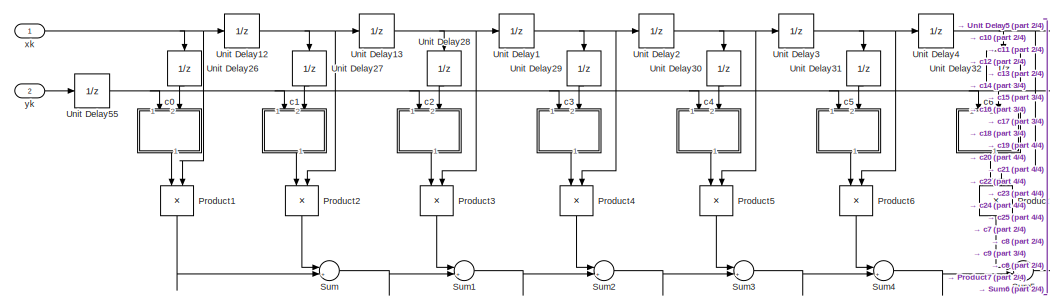
[diagram: root canvas - part 1/4, left side, full height]
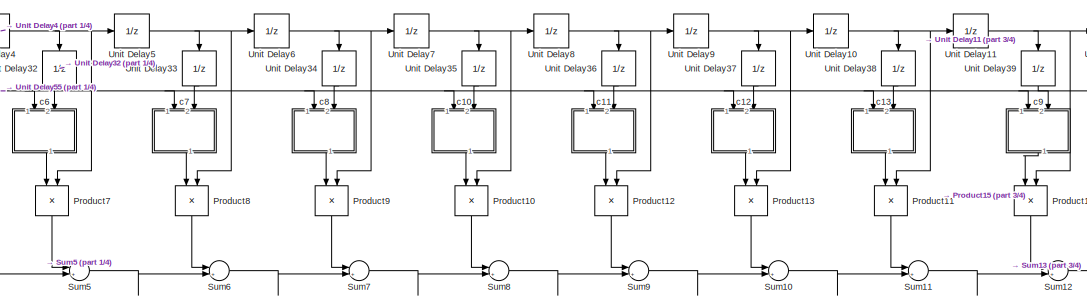
[diagram: root canvas - part 2/4, center side, full height]
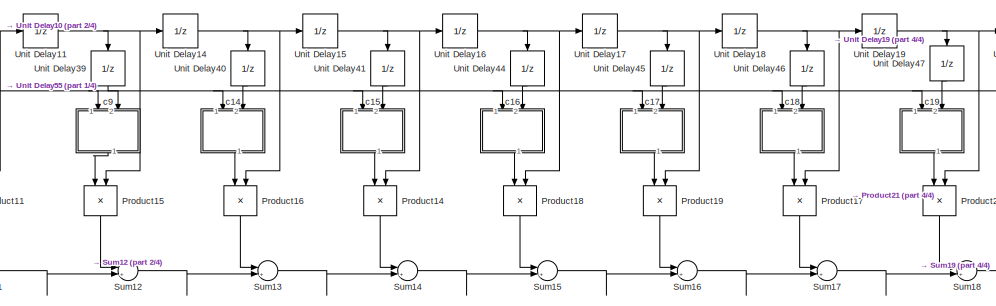
[diagram: root canvas - part 3/4, center side, full height]
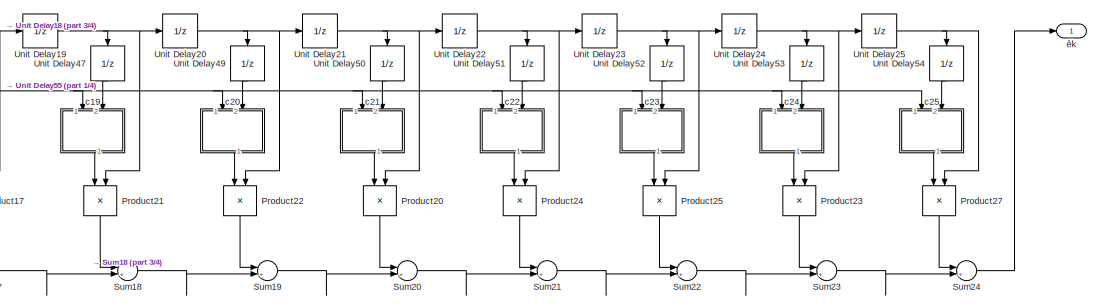
[diagram: root canvas - part 4/4, right side, full height]
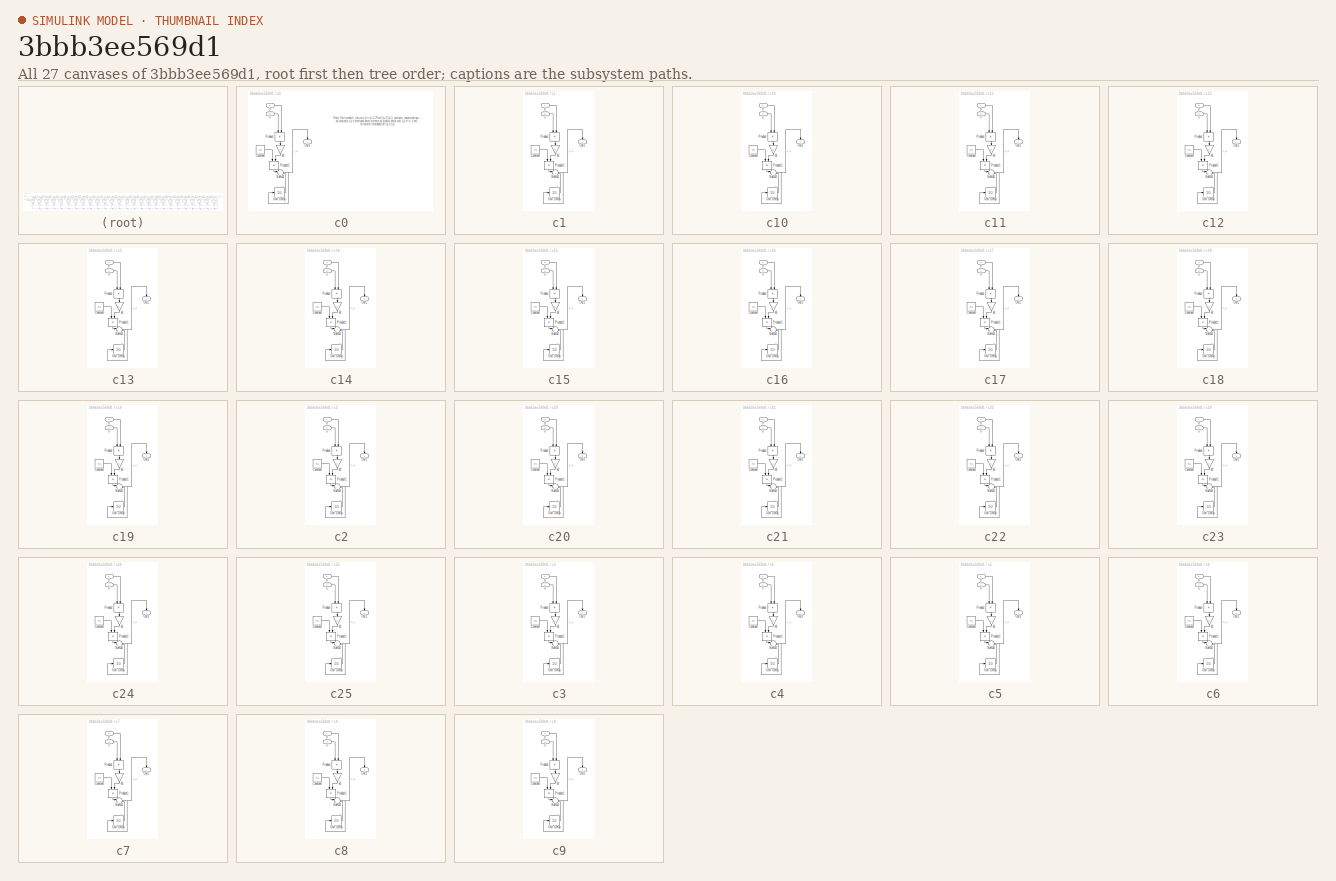
[diagram: thumbnail index - all 27 canvases of the model, root first then tree order]
MODEL slx_3bbb3ee569d1
KIND model
BLOCK [Product] Product1
  InputSameDT = off
  OutDataTypeStr = Inherit: Inherit via internal rule
  Ports = [2, 1]
  RndMeth = Floor
  SaturateOnIntegerOverflow = off
BLOCK [Product] Product10
  InputSameDT = off
  OutDataTypeStr = Inherit: Inherit via internal rule
  Ports = [2, 1]
  RndMeth = Floor
  SaturateOnIntegerOverflow = off
BLOCK [Product] Product11
  InputSameDT = off
  OutDataTypeStr = Inherit: Inherit via internal rule
  Ports = [2, 1]
  RndMeth = Floor
  SaturateOnIntegerOverflow = off
BLOCK [Product] Product12
  InputSameDT = off
  OutDataTypeStr = Inherit: Inherit via internal rule
  Ports = [2, 1]
  RndMeth = Floor
  SaturateOnIntegerOverflow = off
BLOCK [Product] Product13
  InputSameDT = off
  OutDataTypeStr = Inherit: Inherit via internal rule
  Ports = [2, 1]
  RndMeth = Floor
  SaturateOnIntegerOverflow = off
BLOCK [Product] Product14
  InputSameDT = off
  OutDataTypeStr = Inherit: Inherit via internal rule
  Ports = [2, 1]
  RndMeth = Floor
  SaturateOnIntegerOverflow = off
BLOCK [Product] Product15
  InputSameDT = off
  OutDataTypeStr = Inherit: Inherit via internal rule
  Ports = [2, 1]
  RndMeth = Floor
  SaturateOnIntegerOverflow = off
BLOCK [Product] Product16
  InputSameDT = off
  OutDataTypeStr = Inherit: Inherit via internal rule
  Ports = [2, 1]
  RndMeth = Floor
  SaturateOnIntegerOverflow = off
BLOCK [Product] Product17
  InputSameDT = off
  OutDataTypeStr = Inherit: Inherit via internal rule
  Ports = [2, 1]
  RndMeth = Floor
  SaturateOnIntegerOverflow = off
BLOCK [Product] Product18
  InputSameDT = off
  OutDataTypeStr = Inherit: Inherit via internal rule
  Ports = [2, 1]
  RndMeth = Floor
  SaturateOnIntegerOverflow = off
BLOCK [Product] Product19
  InputSameDT = off
  OutDataTypeStr = Inherit: Inherit via internal rule
  Ports = [2, 1]
  RndMeth = Floor
  SaturateOnIntegerOverflow = off
BLOCK [Product] Product2
  InputSameDT = off
  OutDataTypeStr = Inherit: Inherit via internal rule
  Ports = [2, 1]
  RndMeth = Floor
  SaturateOnIntegerOverflow = off
BLOCK [Product] Product20
  InputSameDT = off
  OutDataTypeStr = Inherit: Inherit via internal rule
  Ports = [2, 1]
  RndMeth = Floor
  SaturateOnIntegerOverflow = off
BLOCK [Product] Product21
  InputSameDT = off
  OutDataTypeStr = Inherit: Inherit via internal rule
  Ports = [2, 1]
  RndMeth = Floor
  SaturateOnIntegerOverflow = off
BLOCK [Product] Product22
  InputSameDT = off
  OutDataTypeStr = Inherit: Inherit via internal rule
  Ports = [2, 1]
  RndMeth = Floor
  SaturateOnIntegerOverflow = off
BLOCK [Product] Product23
  InputSameDT = off
  OutDataTypeStr = Inherit: Inherit via internal rule
  Ports = [2, 1]
  RndMeth = Floor
  SaturateOnIntegerOverflow = off
BLOCK [Product] Product24
  InputSameDT = off
  OutDataTypeStr = Inherit: Inherit via internal rule
  Ports = [2, 1]
  RndMeth = Floor
  SaturateOnIntegerOverflow = off
BLOCK [Product] Product25
  InputSameDT = off
  OutDataTypeStr = Inherit: Inherit via internal rule
  Ports = [2, 1]
  RndMeth = Floor
  SaturateOnIntegerOverflow = off
BLOCK [Product] Product27
  InputSameDT = off
  OutDataTypeStr = Inherit: Inherit via internal rule
  Ports = [2, 1]
  RndMeth = Floor
  SaturateOnIntegerOverflow = off
BLOCK [Product] Product3
  InputSameDT = off
  OutDataTypeStr = Inherit: Inherit via internal rule
  Ports = [2, 1]
  RndMeth = Floor
  SaturateOnIntegerOverflow = off
BLOCK [Product] Product4
  InputSameDT = off
  OutDataTypeStr = Inherit: Inherit via internal rule
  Ports = [2, 1]
  RndMeth = Floor
  SaturateOnIntegerOverflow = off
BLOCK [Product] Product5
  InputSameDT = off
  OutDataTypeStr = Inherit: Inherit via internal rule
  Ports = [2, 1]
  RndMeth = Floor
  SaturateOnIntegerOverflow = off
BLOCK [Product] Product6
  InputSameDT = off
  OutDataTypeStr = Inherit: Inherit via internal rule
  Ports = [2, 1]
  RndMeth = Floor
  SaturateOnIntegerOverflow = off
BLOCK [Product] Product7
  InputSameDT = off
  OutDataTypeStr = Inherit: Inherit via internal rule
  Ports = [2, 1]
  RndMeth = Floor
  SaturateOnIntegerOverflow = off
BLOCK [Product] Product8
  InputSameDT = off
  OutDataTypeStr = Inherit: Inherit via internal rule
  Ports = [2, 1]
  RndMeth = Floor
  SaturateOnIntegerOverflow = off
BLOCK [Product] Product9
  InputSameDT = off
  OutDataTypeStr = Inherit: Inherit via internal rule
  Ports = [2, 1]
  RndMeth = Floor
  SaturateOnIntegerOverflow = off
BLOCK [Sum] Sum
  IconShape = round
  InputSameDT = off
  Inputs = |++
  OutDataTypeStr = Inherit: Inherit via internal rule
  Ports = [2, 1]
  SaturateOnIntegerOverflow = off
BLOCK [Sum] Sum1
  IconShape = round
  InputSameDT = off
  Inputs = |++
  OutDataTypeStr = Inherit: Inherit via internal rule
  Ports = [2, 1]
  SaturateOnIntegerOverflow = off
BLOCK [Sum] Sum10
  IconShape = round
  InputSameDT = off
  Inputs = |++
  OutDataTypeStr = Inherit: Inherit via internal rule
  Ports = [2, 1]
  SaturateOnIntegerOverflow = off
BLOCK [Sum] Sum11
  IconShape = round
  InputSameDT = off
  Inputs = |++
  OutDataTypeStr = Inherit: Inherit via internal rule
  Ports = [2, 1]
  SaturateOnIntegerOverflow = off
BLOCK [Sum] Sum12
  IconShape = round
  InputSameDT = off
  Inputs = |++
  OutDataTypeStr = Inherit: Inherit via internal rule
  Ports = [2, 1]
  SaturateOnIntegerOverflow = off
BLOCK [Sum] Sum13
  IconShape = round
  InputSameDT = off
  Inputs = |++
  OutDataTypeStr = Inherit: Inherit via internal rule
  Ports = [2, 1]
  SaturateOnIntegerOverflow = off
BLOCK [Sum] Sum14
  IconShape = round
  InputSameDT = off
  Inputs = |++
  OutDataTypeStr = Inherit: Inherit via internal rule
  Ports = [2, 1]
  SaturateOnIntegerOverflow = off
BLOCK [Sum] Sum15
  IconShape = round
  InputSameDT = off
  Inputs = |++
  OutDataTypeStr = Inherit: Inherit via internal rule
  Ports = [2, 1]
  SaturateOnIntegerOverflow = off
BLOCK [Sum] Sum16
  IconShape = round
  InputSameDT = off
  Inputs = |++
  OutDataTypeStr = Inherit: Inherit via internal rule
  Ports = [2, 1]
  SaturateOnIntegerOverflow = off
BLOCK [Sum] Sum17
  IconShape = round
  InputSameDT = off
  Inputs = |++
  OutDataTypeStr = Inherit: Inherit via internal rule
  Ports = [2, 1]
  SaturateOnIntegerOverflow = off
BLOCK [Sum] Sum18
  IconShape = round
  InputSameDT = off
  Inputs = |++
  OutDataTypeStr = Inherit: Inherit via internal rule
  Ports = [2, 1]
  SaturateOnIntegerOverflow = off
BLOCK [Sum] Sum19
  IconShape = round
  InputSameDT = off
  Inputs = |++
  OutDataTypeStr = Inherit: Inherit via internal rule
  Ports = [2, 1]
  SaturateOnIntegerOverflow = off
BLOCK [Sum] Sum2
  IconShape = round
  InputSameDT = off
  Inputs = |++
  OutDataTypeStr = Inherit: Inherit via internal rule
  Ports = [2, 1]
  SaturateOnIntegerOverflow = off
BLOCK [Sum] Sum20
  IconShape = round
  InputSameDT = off
  Inputs = |++
  OutDataTypeStr = Inherit: Inherit via internal rule
  Ports = [2, 1]
  SaturateOnIntegerOverflow = off
BLOCK [Sum] Sum21
  IconShape = round
  InputSameDT = off
  Inputs = |++
  OutDataTypeStr = Inherit: Inherit via internal rule
  Ports = [2, 1]
  SaturateOnIntegerOverflow = off
BLOCK [Sum] Sum22
  IconShape = round
  InputSameDT = off
  Inputs = |++
  OutDataTypeStr = Inherit: Inherit via internal rule
  Ports = [2, 1]
  SaturateOnIntegerOverflow = off
BLOCK [Sum] Sum23
  IconShape = round
  InputSameDT = off
  Inputs = |++
  OutDataTypeStr = Inherit: Inherit via internal rule
  Ports = [2, 1]
  SaturateOnIntegerOverflow = off
BLOCK [Sum] Sum24
  IconShape = round
  InputSameDT = off
  Inputs = |++
  OutDataTypeStr = Inherit: Inherit via internal rule
  Ports = [2, 1]
  SaturateOnIntegerOverflow = off
BLOCK [Sum] Sum3
  IconShape = round
  InputSameDT = off
  Inputs = |++
  OutDataTypeStr = Inherit: Inherit via internal rule
  Ports = [2, 1]
  SaturateOnIntegerOverflow = off
BLOCK [Sum] Sum4
  IconShape = round
  InputSameDT = off
  Inputs = |++
  OutDataTypeStr = Inherit: Inherit via internal rule
  Ports = [2, 1]
  SaturateOnIntegerOverflow = off
BLOCK [Sum] Sum5
  IconShape = round
  InputSameDT = off
  Inputs = |++
  OutDataTypeStr = Inherit: Inherit via internal rule
  Ports = [2, 1]
  SaturateOnIntegerOverflow = off
BLOCK [Sum] Sum6
  IconShape = round
  InputSameDT = off
  Inputs = |++
  OutDataTypeStr = Inherit: Inherit via internal rule
  Ports = [2, 1]
  SaturateOnIntegerOverflow = off
BLOCK [Sum] Sum7
  IconShape = round
  InputSameDT = off
  Inputs = |++
  OutDataTypeStr = Inherit: Inherit via internal rule
  Ports = [2, 1]
  SaturateOnIntegerOverflow = off
BLOCK [Sum] Sum8
  IconShape = round
  InputSameDT = off
  Inputs = |++
  OutDataTypeStr = Inherit: Inherit via internal rule
  Ports = [2, 1]
  SaturateOnIntegerOverflow = off
BLOCK [Sum] Sum9
  IconShape = round
  InputSameDT = off
  Inputs = |++
  OutDataTypeStr = Inherit: Inherit via internal rule
  Ports = [2, 1]
  SaturateOnIntegerOverflow = off
BLOCK [UnitDelay] Unit Delay1
  InputProcessing = Elements as channels (sample based)
  SampleTime = -1
BLOCK [UnitDelay] Unit Delay10
  InputProcessing = Elements as channels (sample based)
  SampleTime = -1
BLOCK [UnitDelay] Unit Delay11
  InputProcessing = Elements as channels (sample based)
  SampleTime = -1
BLOCK [UnitDelay] Unit Delay12
  InputProcessing = Elements as channels (sample based)
  SampleTime = -1
BLOCK [UnitDelay] Unit Delay13
  InputProcessing = Elements as channels (sample based)
  SampleTime = -1
BLOCK [UnitDelay] Unit Delay14
  InputProcessing = Elements as channels (sample based)
  SampleTime = -1
BLOCK [UnitDelay] Unit Delay15
  InputProcessing = Elements as channels (sample based)
  SampleTime = -1
BLOCK [UnitDelay] Unit Delay16
  InputProcessing = Elements as channels (sample based)
  SampleTime = -1
BLOCK [UnitDelay] Unit Delay17
  InputProcessing = Elements as channels (sample based)
  SampleTime = -1
BLOCK [UnitDelay] Unit Delay18
  InputProcessing = Elements as channels (sample based)
  SampleTime = -1
BLOCK [UnitDelay] Unit Delay19
  InputProcessing = Elements as channels (sample based)
  SampleTime = -1
BLOCK [UnitDelay] Unit Delay2
  InputProcessing = Elements as channels (sample based)
  SampleTime = -1
BLOCK [UnitDelay] Unit Delay20
  InputProcessing = Elements as channels (sample based)
  SampleTime = -1
BLOCK [UnitDelay] Unit Delay21
  InputProcessing = Elements as channels (sample based)
  SampleTime = -1
BLOCK [UnitDelay] Unit Delay22
  InputProcessing = Elements as channels (sample based)
  SampleTime = -1
BLOCK [UnitDelay] Unit Delay23
  InputProcessing = Elements as channels (sample based)
  SampleTime = -1
BLOCK [UnitDelay] Unit Delay24
  InputProcessing = Elements as channels (sample based)
  SampleTime = -1
BLOCK [UnitDelay] Unit Delay25
  InputProcessing = Elements as channels (sample based)
  SampleTime = -1
BLOCK [UnitDelay] Unit Delay26
  InputProcessing = Elements as channels (sample based)
  SampleTime = -1
BLOCK [UnitDelay] Unit Delay27
  InputProcessing = Elements as channels (sample based)
  SampleTime = -1
BLOCK [UnitDelay] Unit Delay28
  InputProcessing = Elements as channels (sample based)
  SampleTime = -1
BLOCK [UnitDelay] Unit Delay29
  InputProcessing = Elements as channels (sample based)
  SampleTime = -1
BLOCK [UnitDelay] Unit Delay3
  InputProcessing = Elements as channels (sample based)
  SampleTime = -1
BLOCK [UnitDelay] Unit Delay30
  InputProcessing = Elements as channels (sample based)
  SampleTime = -1
BLOCK [UnitDelay] Unit Delay31
  InputProcessing = Elements as channels (sample based)
  SampleTime = -1
BLOCK [UnitDelay] Unit Delay32
  InputProcessing = Elements as channels (sample based)
  SampleTime = -1
BLOCK [UnitDelay] Unit Delay33
  InputProcessing = Elements as channels (sample based)
  SampleTime = -1
BLOCK [UnitDelay] Unit Delay34
  InputProcessing = Elements as channels (sample based)
  SampleTime = -1
BLOCK [UnitDelay] Unit Delay35
  InputProcessing = Elements as channels (sample based)
  SampleTime = -1
BLOCK [UnitDelay] Unit Delay36
  InputProcessing = Elements as channels (sample based)
  SampleTime = -1
BLOCK [UnitDelay] Unit Delay37
  InputProcessing = Elements as channels (sample based)
  SampleTime = -1
BLOCK [UnitDelay] Unit Delay38
  InputProcessing = Elements as channels (sample based)
  SampleTime = -1
BLOCK [UnitDelay] Unit Delay39
  InputProcessing = Elements as channels (sample based)
  SampleTime = -1
BLOCK [UnitDelay] Unit Delay4
  InputProcessing = Elements as channels (sample based)
  SampleTime = -1
BLOCK [UnitDelay] Unit Delay40
  InputProcessing = Elements as channels (sample based)
  SampleTime = -1
BLOCK [UnitDelay] Unit Delay41
  InputProcessing = Elements as channels (sample based)
  SampleTime = -1
BLOCK [UnitDelay] Unit Delay44
  InputProcessing = Elements as channels (sample based)
  SampleTime = -1
BLOCK [UnitDelay] Unit Delay45
  InputProcessing = Elements as channels (sample based)
  SampleTime = -1
BLOCK [UnitDelay] Unit Delay46
  InputProcessing = Elements as channels (sample based)
  SampleTime = -1
BLOCK [UnitDelay] Unit Delay47
  InputProcessing = Elements as channels (sample based)
  SampleTime = -1
BLOCK [UnitDelay] Unit Delay49
  InputProcessing = Elements as channels (sample based)
  SampleTime = -1
BLOCK [UnitDelay] Unit Delay5
  InputProcessing = Elements as channels (sample based)
  SampleTime = -1
BLOCK [UnitDelay] Unit Delay50
  InputProcessing = Elements as channels (sample based)
  SampleTime = -1
BLOCK [UnitDelay] Unit Delay51
  InputProcessing = Elements as channels (sample based)
  SampleTime = -1
BLOCK [UnitDelay] Unit Delay52
  InputProcessing = Elements as channels (sample based)
  SampleTime = -1
BLOCK [UnitDelay] Unit Delay53
  InputProcessing = Elements as channels (sample based)
  SampleTime = -1
BLOCK [UnitDelay] Unit Delay54
  InputProcessing = Elements as channels (sample based)
  SampleTime = -1
BLOCK [UnitDelay] Unit Delay55
  InputProcessing = Elements as channels (sample based)
  SampleTime = -1
BLOCK [UnitDelay] Unit Delay6
  InputProcessing = Elements as channels (sample based)
  SampleTime = -1
BLOCK [UnitDelay] Unit Delay7
  InputProcessing = Elements as channels (sample based)
  SampleTime = -1
BLOCK [UnitDelay] Unit Delay8
  InputProcessing = Elements as channels (sample based)
  SampleTime = -1
BLOCK [UnitDelay] Unit Delay9
  InputProcessing = Elements as channels (sample based)
  SampleTime = -1
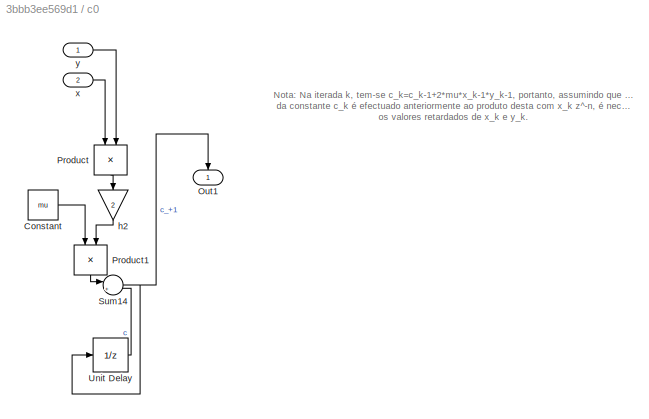
BLOCK [SubSystem] c0
  FunctionWithSeparateData = off
  MaskHideContents = off
  MinAlgLoopOccurrences = off
  Opaque = off
  Ports = [2, 1]
  PropExecContextOutsideSubsystem = off
  RTWSystemCode = Auto
  RequestExecContextInheritance = off
BLOCK [Constant] c0/Constant
  Value = mu
BLOCK [Outport] c0/Out1
  IconDisplay = Port number
BLOCK [Product] c0/Product
  InputSameDT = off
  OutDataTypeStr = Inherit: Inherit via internal rule
  Ports = [2, 1]
  RndMeth = Floor
  SaturateOnIntegerOverflow = off
BLOCK [Product] c0/Product1
  InputSameDT = off
  OutDataTypeStr = Inherit: Inherit via internal rule
  Ports = [2, 1]
  RndMeth = Floor
  SaturateOnIntegerOverflow = off
BLOCK [Sum] c0/Sum14
  IconShape = round
  InputSameDT = off
  Inputs = |++
  OutDataTypeStr = Inherit: Inherit via internal rule
  Ports = [2, 1]
  SaturateOnIntegerOverflow = off
BLOCK [UnitDelay] c0/Unit Delay 
  InputProcessing = Elements as channels (sample based)
  SampleTime = -1
BLOCK [Gain] c0/h2
  Gain = 2
  OutDataTypeStr = Inherit: Inherit via internal rule
  ParamDataTypeStr = Inherit: Inherit via internal rule
  SaturateOnIntegerOverflow = off
BLOCK [Inport] c0/x
  IconDisplay = Port number
  Port = 2
BLOCK [Inport] c0/y
  IconDisplay = Port number
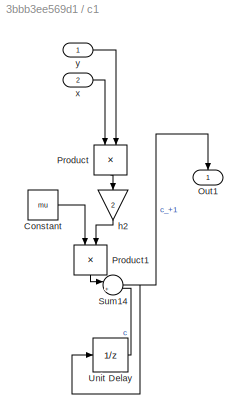
BLOCK [SubSystem] c1
  FunctionWithSeparateData = off
  MaskHideContents = off
  MinAlgLoopOccurrences = off
  Opaque = off
  Ports = [2, 1]
  PropExecContextOutsideSubsystem = off
  RTWSystemCode = Auto
  RequestExecContextInheritance = off
BLOCK [Constant] c1/Constant
  Value = mu
BLOCK [Outport] c1/Out1
  IconDisplay = Port number
BLOCK [Product] c1/Product
  InputSameDT = off
  OutDataTypeStr = Inherit: Inherit via internal rule
  Ports = [2, 1]
  RndMeth = Floor
  SaturateOnIntegerOverflow = off
BLOCK [Product] c1/Product1
  InputSameDT = off
  OutDataTypeStr = Inherit: Inherit via internal rule
  Ports = [2, 1]
  RndMeth = Floor
  SaturateOnIntegerOverflow = off
BLOCK [Sum] c1/Sum14
  IconShape = round
  InputSameDT = off
  Inputs = |++
  OutDataTypeStr = Inherit: Inherit via internal rule
  Ports = [2, 1]
  SaturateOnIntegerOverflow = off
BLOCK [UnitDelay] c1/Unit Delay 
  InputProcessing = Elements as channels (sample based)
  SampleTime = -1
BLOCK [Gain] c1/h2
  Gain = 2
  OutDataTypeStr = Inherit: Inherit via internal rule
  ParamDataTypeStr = Inherit: Inherit via internal rule
  SaturateOnIntegerOverflow = off
BLOCK [Inport] c1/x
  IconDisplay = Port number
  Port = 2
BLOCK [Inport] c1/y
  IconDisplay = Port number
BLOCK [SubSystem] c10
  FunctionWithSeparateData = off
  MaskHideContents = off
  MinAlgLoopOccurrences = off
  Opaque = off
  Ports = [2, 1]
  PropExecContextOutsideSubsystem = off
  RTWSystemCode = Auto
  RequestExecContextInheritance = off
BLOCK [Constant] c10/Constant
  Value = mu
BLOCK [Outport] c10/Out1
  IconDisplay = Port number
BLOCK [Product] c10/Product
  InputSameDT = off
  OutDataTypeStr = Inherit: Inherit via internal rule
  Ports = [2, 1]
  RndMeth = Floor
  SaturateOnIntegerOverflow = off
BLOCK [Product] c10/Product1
  InputSameDT = off
  OutDataTypeStr = Inherit: Inherit via internal rule
  Ports = [2, 1]
  RndMeth = Floor
  SaturateOnIntegerOverflow = off
BLOCK [Sum] c10/Sum14
  IconShape = round
  InputSameDT = off
  Inputs = |++
  OutDataTypeStr = Inherit: Inherit via internal rule
  Ports = [2, 1]
  SaturateOnIntegerOverflow = off
BLOCK [UnitDelay] c10/Unit Delay 
  InputProcessing = Elements as channels (sample based)
  SampleTime = -1
BLOCK [Gain] c10/h2
  Gain = 2
  OutDataTypeStr = Inherit: Inherit via internal rule
  ParamDataTypeStr = Inherit: Inherit via internal rule
  SaturateOnIntegerOverflow = off
BLOCK [Inport] c10/x
  IconDisplay = Port number
  Port = 2
BLOCK [Inport] c10/y
  IconDisplay = Port number
BLOCK [SubSystem] c11
  FunctionWithSeparateData = off
  MaskHideContents = off
  MinAlgLoopOccurrences = off
  Opaque = off
  Ports = [2, 1]
  PropExecContextOutsideSubsystem = off
  RTWSystemCode = Auto
  RequestExecContextInheritance = off
BLOCK [Constant] c11/Constant
  Value = mu
BLOCK [Outport] c11/Out1
  IconDisplay = Port number
BLOCK [Product] c11/Product
  InputSameDT = off
  OutDataTypeStr = Inherit: Inherit via internal rule
  Ports = [2, 1]
  RndMeth = Floor
  SaturateOnIntegerOverflow = off
BLOCK [Product] c11/Product1
  InputSameDT = off
  OutDataTypeStr = Inherit: Inherit via internal rule
  Ports = [2, 1]
  RndMeth = Floor
  SaturateOnIntegerOverflow = off
BLOCK [Sum] c11/Sum14
  IconShape = round
  InputSameDT = off
  Inputs = |++
  OutDataTypeStr = Inherit: Inherit via internal rule
  Ports = [2, 1]
  SaturateOnIntegerOverflow = off
BLOCK [UnitDelay] c11/Unit Delay 
  InputProcessing = Elements as channels (sample based)
  SampleTime = -1
BLOCK [Gain] c11/h2
  Gain = 2
  OutDataTypeStr = Inherit: Inherit via internal rule
  ParamDataTypeStr = Inherit: Inherit via internal rule
  SaturateOnIntegerOverflow = off
BLOCK [Inport] c11/x
  IconDisplay = Port number
  Port = 2
BLOCK [Inport] c11/y
  IconDisplay = Port number
BLOCK [SubSystem] c12
  FunctionWithSeparateData = off
  MaskHideContents = off
  MinAlgLoopOccurrences = off
  Opaque = off
  Ports = [2, 1]
  PropExecContextOutsideSubsystem = off
  RTWSystemCode = Auto
  RequestExecContextInheritance = off
BLOCK [Constant] c12/Constant
  Value = mu
BLOCK [Outport] c12/Out1
  IconDisplay = Port number
BLOCK [Product] c12/Product
  InputSameDT = off
  OutDataTypeStr = Inherit: Inherit via internal rule
  Ports = [2, 1]
  RndMeth = Floor
  SaturateOnIntegerOverflow = off
BLOCK [Product] c12/Product1
  InputSameDT = off
  OutDataTypeStr = Inherit: Inherit via internal rule
  Ports = [2, 1]
  RndMeth = Floor
  SaturateOnIntegerOverflow = off
BLOCK [Sum] c12/Sum14
  IconShape = round
  InputSameDT = off
  Inputs = |++
  OutDataTypeStr = Inherit: Inherit via internal rule
  Ports = [2, 1]
  SaturateOnIntegerOverflow = off
BLOCK [UnitDelay] c12/Unit Delay 
  InputProcessing = Elements as channels (sample based)
  SampleTime = -1
BLOCK [Gain] c12/h2
  Gain = 2
  OutDataTypeStr = Inherit: Inherit via internal rule
  ParamDataTypeStr = Inherit: Inherit via internal rule
  SaturateOnIntegerOverflow = off
BLOCK [Inport] c12/x
  IconDisplay = Port number
  Port = 2
BLOCK [Inport] c12/y
  IconDisplay = Port number
BLOCK [SubSystem] c13
  FunctionWithSeparateData = off
  MaskHideContents = off
  MinAlgLoopOccurrences = off
  Opaque = off
  Ports = [2, 1]
  PropExecContextOutsideSubsystem = off
  RTWSystemCode = Auto
  RequestExecContextInheritance = off
BLOCK [Constant] c13/Constant
  Value = mu
BLOCK [Outport] c13/Out1
  IconDisplay = Port number
BLOCK [Product] c13/Product
  InputSameDT = off
  OutDataTypeStr = Inherit: Inherit via internal rule
  Ports = [2, 1]
  RndMeth = Floor
  SaturateOnIntegerOverflow = off
BLOCK [Product] c13/Product1
  InputSameDT = off
  OutDataTypeStr = Inherit: Inherit via internal rule
  Ports = [2, 1]
  RndMeth = Floor
  SaturateOnIntegerOverflow = off
BLOCK [Sum] c13/Sum14
  IconShape = round
  InputSameDT = off
  Inputs = |++
  OutDataTypeStr = Inherit: Inherit via internal rule
  Ports = [2, 1]
  SaturateOnIntegerOverflow = off
BLOCK [UnitDelay] c13/Unit Delay 
  InputProcessing = Elements as channels (sample based)
  SampleTime = -1
BLOCK [Gain] c13/h2
  Gain = 2
  OutDataTypeStr = Inherit: Inherit via internal rule
  ParamDataTypeStr = Inherit: Inherit via internal rule
  SaturateOnIntegerOverflow = off
BLOCK [Inport] c13/x
  IconDisplay = Port number
  Port = 2
BLOCK [Inport] c13/y
  IconDisplay = Port number
BLOCK [SubSystem] c14
  FunctionWithSeparateData = off
  MaskHideContents = off
  MinAlgLoopOccurrences = off
  Opaque = off
  Ports = [2, 1]
  PropExecContextOutsideSubsystem = off
  RTWSystemCode = Auto
  RequestExecContextInheritance = off
BLOCK [Constant] c14/Constant
  Value = mu
BLOCK [Outport] c14/Out1
  IconDisplay = Port number
BLOCK [Product] c14/Product
  InputSameDT = off
  OutDataTypeStr = Inherit: Inherit via internal rule
  Ports = [2, 1]
  RndMeth = Floor
  SaturateOnIntegerOverflow = off
BLOCK [Product] c14/Product1
  InputSameDT = off
  OutDataTypeStr = Inherit: Inherit via internal rule
  Ports = [2, 1]
  RndMeth = Floor
  SaturateOnIntegerOverflow = off
BLOCK [Sum] c14/Sum14
  IconShape = round
  InputSameDT = off
  Inputs = |++
  OutDataTypeStr = Inherit: Inherit via internal rule
  Ports = [2, 1]
  SaturateOnIntegerOverflow = off
BLOCK [UnitDelay] c14/Unit Delay 
  InputProcessing = Elements as channels (sample based)
  SampleTime = -1
BLOCK [Gain] c14/h2
  Gain = 2
  OutDataTypeStr = Inherit: Inherit via internal rule
  ParamDataTypeStr = Inherit: Inherit via internal rule
  SaturateOnIntegerOverflow = off
BLOCK [Inport] c14/x
  IconDisplay = Port number
  Port = 2
BLOCK [Inport] c14/y
  IconDisplay = Port number
BLOCK [SubSystem] c15
  FunctionWithSeparateData = off
  MaskHideContents = off
  MinAlgLoopOccurrences = off
  Opaque = off
  Ports = [2, 1]
  PropExecContextOutsideSubsystem = off
  RTWSystemCode = Auto
  RequestExecContextInheritance = off
BLOCK [Constant] c15/Constant
  Value = mu
BLOCK [Outport] c15/Out1
  IconDisplay = Port number
BLOCK [Product] c15/Product
  InputSameDT = off
  OutDataTypeStr = Inherit: Inherit via internal rule
  Ports = [2, 1]
  RndMeth = Floor
  SaturateOnIntegerOverflow = off
BLOCK [Product] c15/Product1
  InputSameDT = off
  OutDataTypeStr = Inherit: Inherit via internal rule
  Ports = [2, 1]
  RndMeth = Floor
  SaturateOnIntegerOverflow = off
BLOCK [Sum] c15/Sum14
  IconShape = round
  InputSameDT = off
  Inputs = |++
  OutDataTypeStr = Inherit: Inherit via internal rule
  Ports = [2, 1]
  SaturateOnIntegerOverflow = off
BLOCK [UnitDelay] c15/Unit Delay 
  InputProcessing = Elements as channels (sample based)
  SampleTime = -1
BLOCK [Gain] c15/h2
  Gain = 2
  OutDataTypeStr = Inherit: Inherit via internal rule
  ParamDataTypeStr = Inherit: Inherit via internal rule
  SaturateOnIntegerOverflow = off
BLOCK [Inport] c15/x
  IconDisplay = Port number
  Port = 2
BLOCK [Inport] c15/y
  IconDisplay = Port number
BLOCK [SubSystem] c16
  FunctionWithSeparateData = off
  MaskHideContents = off
  MinAlgLoopOccurrences = off
  Opaque = off
  Ports = [2, 1]
  PropExecContextOutsideSubsystem = off
  RTWSystemCode = Auto
  RequestExecContextInheritance = off
BLOCK [Constant] c16/Constant
  Value = mu
BLOCK [Outport] c16/Out1
  IconDisplay = Port number
BLOCK [Product] c16/Product
  InputSameDT = off
  OutDataTypeStr = Inherit: Inherit via internal rule
  Ports = [2, 1]
  RndMeth = Floor
  SaturateOnIntegerOverflow = off
BLOCK [Product] c16/Product1
  InputSameDT = off
  OutDataTypeStr = Inherit: Inherit via internal rule
  Ports = [2, 1]
  RndMeth = Floor
  SaturateOnIntegerOverflow = off
BLOCK [Sum] c16/Sum14
  IconShape = round
  InputSameDT = off
  Inputs = |++
  OutDataTypeStr = Inherit: Inherit via internal rule
  Ports = [2, 1]
  SaturateOnIntegerOverflow = off
BLOCK [UnitDelay] c16/Unit Delay 
  InputProcessing = Elements as channels (sample based)
  SampleTime = -1
BLOCK [Gain] c16/h2
  Gain = 2
  OutDataTypeStr = Inherit: Inherit via internal rule
  ParamDataTypeStr = Inherit: Inherit via internal rule
  SaturateOnIntegerOverflow = off
BLOCK [Inport] c16/x
  IconDisplay = Port number
  Port = 2
BLOCK [Inport] c16/y
  IconDisplay = Port number
BLOCK [SubSystem] c17
  FunctionWithSeparateData = off
  MaskHideContents = off
  MinAlgLoopOccurrences = off
  Opaque = off
  Ports = [2, 1]
  PropExecContextOutsideSubsystem = off
  RTWSystemCode = Auto
  RequestExecContextInheritance = off
BLOCK [Constant] c17/Constant
  Value = mu
BLOCK [Outport] c17/Out1
  IconDisplay = Port number
BLOCK [Product] c17/Product
  InputSameDT = off
  OutDataTypeStr = Inherit: Inherit via internal rule
  Ports = [2, 1]
  RndMeth = Floor
  SaturateOnIntegerOverflow = off
BLOCK [Product] c17/Product1
  InputSameDT = off
  OutDataTypeStr = Inherit: Inherit via internal rule
  Ports = [2, 1]
  RndMeth = Floor
  SaturateOnIntegerOverflow = off
BLOCK [Sum] c17/Sum14
  IconShape = round
  InputSameDT = off
  Inputs = |++
  OutDataTypeStr = Inherit: Inherit via internal rule
  Ports = [2, 1]
  SaturateOnIntegerOverflow = off
BLOCK [UnitDelay] c17/Unit Delay 
  InputProcessing = Elements as channels (sample based)
  SampleTime = -1
BLOCK [Gain] c17/h2
  Gain = 2
  OutDataTypeStr = Inherit: Inherit via internal rule
  ParamDataTypeStr = Inherit: Inherit via internal rule
  SaturateOnIntegerOverflow = off
BLOCK [Inport] c17/x
  IconDisplay = Port number
  Port = 2
BLOCK [Inport] c17/y
  IconDisplay = Port number
BLOCK [SubSystem] c18
  FunctionWithSeparateData = off
  MaskHideContents = off
  MinAlgLoopOccurrences = off
  Opaque = off
  Ports = [2, 1]
  PropExecContextOutsideSubsystem = off
  RTWSystemCode = Auto
  RequestExecContextInheritance = off
BLOCK [Constant] c18/Constant
  Value = mu
BLOCK [Outport] c18/Out1
  IconDisplay = Port number
BLOCK [Product] c18/Product
  InputSameDT = off
  OutDataTypeStr = Inherit: Inherit via internal rule
  Ports = [2, 1]
  RndMeth = Floor
  SaturateOnIntegerOverflow = off
BLOCK [Product] c18/Product1
  InputSameDT = off
  OutDataTypeStr = Inherit: Inherit via internal rule
  Ports = [2, 1]
  RndMeth = Floor
  SaturateOnIntegerOverflow = off
BLOCK [Sum] c18/Sum14
  IconShape = round
  InputSameDT = off
  Inputs = |++
  OutDataTypeStr = Inherit: Inherit via internal rule
  Ports = [2, 1]
  SaturateOnIntegerOverflow = off
BLOCK [UnitDelay] c18/Unit Delay 
  InputProcessing = Elements as channels (sample based)
  SampleTime = -1
BLOCK [Gain] c18/h2
  Gain = 2
  OutDataTypeStr = Inherit: Inherit via internal rule
  ParamDataTypeStr = Inherit: Inherit via internal rule
  SaturateOnIntegerOverflow = off
BLOCK [Inport] c18/x
  IconDisplay = Port number
  Port = 2
BLOCK [Inport] c18/y
  IconDisplay = Port number
BLOCK [SubSystem] c19
  FunctionWithSeparateData = off
  MaskHideContents = off
  MinAlgLoopOccurrences = off
  Opaque = off
  Ports = [2, 1]
  PropExecContextOutsideSubsystem = off
  RTWSystemCode = Auto
  RequestExecContextInheritance = off
BLOCK [Constant] c19/Constant
  Value = mu
BLOCK [Outport] c19/Out1
  IconDisplay = Port number
BLOCK [Product] c19/Product
  InputSameDT = off
  OutDataTypeStr = Inherit: Inherit via internal rule
  Ports = [2, 1]
  RndMeth = Floor
  SaturateOnIntegerOverflow = off
BLOCK [Product] c19/Product1
  InputSameDT = off
  OutDataTypeStr = Inherit: Inherit via internal rule
  Ports = [2, 1]
  RndMeth = Floor
  SaturateOnIntegerOverflow = off
BLOCK [Sum] c19/Sum14
  IconShape = round
  InputSameDT = off
  Inputs = |++
  OutDataTypeStr = Inherit: Inherit via internal rule
  Ports = [2, 1]
  SaturateOnIntegerOverflow = off
BLOCK [UnitDelay] c19/Unit Delay 
  InputProcessing = Elements as channels (sample based)
  SampleTime = -1
BLOCK [Gain] c19/h2
  Gain = 2
  OutDataTypeStr = Inherit: Inherit via internal rule
  ParamDataTypeStr = Inherit: Inherit via internal rule
  SaturateOnIntegerOverflow = off
BLOCK [Inport] c19/x
  IconDisplay = Port number
  Port = 2
BLOCK [Inport] c19/y
  IconDisplay = Port number
BLOCK [SubSystem] c2
  FunctionWithSeparateData = off
  MaskHideContents = off
  MinAlgLoopOccurrences = off
  Opaque = off
  Ports = [2, 1]
  PropExecContextOutsideSubsystem = off
  RTWSystemCode = Auto
  RequestExecContextInheritance = off
BLOCK [Constant] c2/Constant
  Value = mu
BLOCK [Outport] c2/Out1
  IconDisplay = Port number
BLOCK [Product] c2/Product
  InputSameDT = off
  OutDataTypeStr = Inherit: Inherit via internal rule
  Ports = [2, 1]
  RndMeth = Floor
  SaturateOnIntegerOverflow = off
BLOCK [Product] c2/Product1
  InputSameDT = off
  OutDataTypeStr = Inherit: Inherit via internal rule
  Ports = [2, 1]
  RndMeth = Floor
  SaturateOnIntegerOverflow = off
BLOCK [Sum] c2/Sum14
  IconShape = round
  InputSameDT = off
  Inputs = |++
  OutDataTypeStr = Inherit: Inherit via internal rule
  Ports = [2, 1]
  SaturateOnIntegerOverflow = off
BLOCK [UnitDelay] c2/Unit Delay 
  InputProcessing = Elements as channels (sample based)
  SampleTime = -1
BLOCK [Gain] c2/h2
  Gain = 2
  OutDataTypeStr = Inherit: Inherit via internal rule
  ParamDataTypeStr = Inherit: Inherit via internal rule
  SaturateOnIntegerOverflow = off
BLOCK [Inport] c2/x
  IconDisplay = Port number
  Port = 2
BLOCK [Inport] c2/y
  IconDisplay = Port number
BLOCK [SubSystem] c20
  FunctionWithSeparateData = off
  MaskHideContents = off
  MinAlgLoopOccurrences = off
  Opaque = off
  Ports = [2, 1]
  PropExecContextOutsideSubsystem = off
  RTWSystemCode = Auto
  RequestExecContextInheritance = off
BLOCK [Constant] c20/Constant
  Value = mu
BLOCK [Outport] c20/Out1
  IconDisplay = Port number
BLOCK [Product] c20/Product
  InputSameDT = off
  OutDataTypeStr = Inherit: Inherit via internal rule
  Ports = [2, 1]
  RndMeth = Floor
  SaturateOnIntegerOverflow = off
BLOCK [Product] c20/Product1
  InputSameDT = off
  OutDataTypeStr = Inherit: Inherit via internal rule
  Ports = [2, 1]
  RndMeth = Floor
  SaturateOnIntegerOverflow = off
BLOCK [Sum] c20/Sum14
  IconShape = round
  InputSameDT = off
  Inputs = |++
  OutDataTypeStr = Inherit: Inherit via internal rule
  Ports = [2, 1]
  SaturateOnIntegerOverflow = off
BLOCK [UnitDelay] c20/Unit Delay 
  InputProcessing = Elements as channels (sample based)
  SampleTime = -1
BLOCK [Gain] c20/h2
  Gain = 2
  OutDataTypeStr = Inherit: Inherit via internal rule
  ParamDataTypeStr = Inherit: Inherit via internal rule
  SaturateOnIntegerOverflow = off
BLOCK [Inport] c20/x
  IconDisplay = Port number
  Port = 2
BLOCK [Inport] c20/y
  IconDisplay = Port number
BLOCK [SubSystem] c21
  FunctionWithSeparateData = off
  MaskHideContents = off
  MinAlgLoopOccurrences = off
  Opaque = off
  Ports = [2, 1]
  PropExecContextOutsideSubsystem = off
  RTWSystemCode = Auto
  RequestExecContextInheritance = off
BLOCK [Constant] c21/Constant
  Value = mu
BLOCK [Outport] c21/Out1
  IconDisplay = Port number
BLOCK [Product] c21/Product
  InputSameDT = off
  OutDataTypeStr = Inherit: Inherit via internal rule
  Ports = [2, 1]
  RndMeth = Floor
  SaturateOnIntegerOverflow = off
BLOCK [Product] c21/Product1
  InputSameDT = off
  OutDataTypeStr = Inherit: Inherit via internal rule
  Ports = [2, 1]
  RndMeth = Floor
  SaturateOnIntegerOverflow = off
BLOCK [Sum] c21/Sum14
  IconShape = round
  InputSameDT = off
  Inputs = |++
  OutDataTypeStr = Inherit: Inherit via internal rule
  Ports = [2, 1]
  SaturateOnIntegerOverflow = off
BLOCK [UnitDelay] c21/Unit Delay 
  InputProcessing = Elements as channels (sample based)
  SampleTime = -1
BLOCK [Gain] c21/h2
  Gain = 2
  OutDataTypeStr = Inherit: Inherit via internal rule
  ParamDataTypeStr = Inherit: Inherit via internal rule
  SaturateOnIntegerOverflow = off
BLOCK [Inport] c21/x
  IconDisplay = Port number
  Port = 2
BLOCK [Inport] c21/y
  IconDisplay = Port number
BLOCK [SubSystem] c22
  FunctionWithSeparateData = off
  MaskHideContents = off
  MinAlgLoopOccurrences = off
  Opaque = off
  Ports = [2, 1]
  PropExecContextOutsideSubsystem = off
  RTWSystemCode = Auto
  RequestExecContextInheritance = off
BLOCK [Constant] c22/Constant
  Value = mu
BLOCK [Outport] c22/Out1
  IconDisplay = Port number
BLOCK [Product] c22/Product
  InputSameDT = off
  OutDataTypeStr = Inherit: Inherit via internal rule
  Ports = [2, 1]
  RndMeth = Floor
  SaturateOnIntegerOverflow = off
BLOCK [Product] c22/Product1
  InputSameDT = off
  OutDataTypeStr = Inherit: Inherit via internal rule
  Ports = [2, 1]
  RndMeth = Floor
  SaturateOnIntegerOverflow = off
BLOCK [Sum] c22/Sum14
  IconShape = round
  InputSameDT = off
  Inputs = |++
  OutDataTypeStr = Inherit: Inherit via internal rule
  Ports = [2, 1]
  SaturateOnIntegerOverflow = off
BLOCK [UnitDelay] c22/Unit Delay 
  InputProcessing = Elements as channels (sample based)
  SampleTime = -1
BLOCK [Gain] c22/h2
  Gain = 2
  OutDataTypeStr = Inherit: Inherit via internal rule
  ParamDataTypeStr = Inherit: Inherit via internal rule
  SaturateOnIntegerOverflow = off
BLOCK [Inport] c22/x
  IconDisplay = Port number
  Port = 2
BLOCK [Inport] c22/y
  IconDisplay = Port number
BLOCK [SubSystem] c23
  FunctionWithSeparateData = off
  MaskHideContents = off
  MinAlgLoopOccurrences = off
  Opaque = off
  Ports = [2, 1]
  PropExecContextOutsideSubsystem = off
  RTWSystemCode = Auto
  RequestExecContextInheritance = off
BLOCK [Constant] c23/Constant
  Value = mu
BLOCK [Outport] c23/Out1
  IconDisplay = Port number
BLOCK [Product] c23/Product
  InputSameDT = off
  OutDataTypeStr = Inherit: Inherit via internal rule
  Ports = [2, 1]
  RndMeth = Floor
  SaturateOnIntegerOverflow = off
BLOCK [Product] c23/Product1
  InputSameDT = off
  OutDataTypeStr = Inherit: Inherit via internal rule
  Ports = [2, 1]
  RndMeth = Floor
  SaturateOnIntegerOverflow = off
BLOCK [Sum] c23/Sum14
  IconShape = round
  InputSameDT = off
  Inputs = |++
  OutDataTypeStr = Inherit: Inherit via internal rule
  Ports = [2, 1]
  SaturateOnIntegerOverflow = off
BLOCK [UnitDelay] c23/Unit Delay 
  InputProcessing = Elements as channels (sample based)
  SampleTime = -1
BLOCK [Gain] c23/h2
  Gain = 2
  OutDataTypeStr = Inherit: Inherit via internal rule
  ParamDataTypeStr = Inherit: Inherit via internal rule
  SaturateOnIntegerOverflow = off
BLOCK [Inport] c23/x
  IconDisplay = Port number
  Port = 2
BLOCK [Inport] c23/y
  IconDisplay = Port number
BLOCK [SubSystem] c24
  FunctionWithSeparateData = off
  MaskHideContents = off
  MinAlgLoopOccurrences = off
  Opaque = off
  Ports = [2, 1]
  PropExecContextOutsideSubsystem = off
  RTWSystemCode = Auto
  RequestExecContextInheritance = off
BLOCK [Constant] c24/Constant
  Value = mu
BLOCK [Outport] c24/Out1
  IconDisplay = Port number
BLOCK [Product] c24/Product
  InputSameDT = off
  OutDataTypeStr = Inherit: Inherit via internal rule
  Ports = [2, 1]
  RndMeth = Floor
  SaturateOnIntegerOverflow = off
BLOCK [Product] c24/Product1
  InputSameDT = off
  OutDataTypeStr = Inherit: Inherit via internal rule
  Ports = [2, 1]
  RndMeth = Floor
  SaturateOnIntegerOverflow = off
BLOCK [Sum] c24/Sum14
  IconShape = round
  InputSameDT = off
  Inputs = |++
  OutDataTypeStr = Inherit: Inherit via internal rule
  Ports = [2, 1]
  SaturateOnIntegerOverflow = off
BLOCK [UnitDelay] c24/Unit Delay 
  InputProcessing = Elements as channels (sample based)
  SampleTime = -1
BLOCK [Gain] c24/h2
  Gain = 2
  OutDataTypeStr = Inherit: Inherit via internal rule
  ParamDataTypeStr = Inherit: Inherit via internal rule
  SaturateOnIntegerOverflow = off
BLOCK [Inport] c24/x
  IconDisplay = Port number
  Port = 2
BLOCK [Inport] c24/y
  IconDisplay = Port number
BLOCK [SubSystem] c25
  FunctionWithSeparateData = off
  MaskHideContents = off
  MinAlgLoopOccurrences = off
  Opaque = off
  Ports = [2, 1]
  PropExecContextOutsideSubsystem = off
  RTWSystemCode = Auto
  RequestExecContextInheritance = off
BLOCK [Constant] c25/Constant
  Value = mu
BLOCK [Outport] c25/Out1
  IconDisplay = Port number
BLOCK [Product] c25/Product
  InputSameDT = off
  OutDataTypeStr = Inherit: Inherit via internal rule
  Ports = [2, 1]
  RndMeth = Floor
  SaturateOnIntegerOverflow = off
BLOCK [Product] c25/Product1
  InputSameDT = off
  OutDataTypeStr = Inherit: Inherit via internal rule
  Ports = [2, 1]
  RndMeth = Floor
  SaturateOnIntegerOverflow = off
BLOCK [Sum] c25/Sum14
  IconShape = round
  InputSameDT = off
  Inputs = |++
  OutDataTypeStr = Inherit: Inherit via internal rule
  Ports = [2, 1]
  SaturateOnIntegerOverflow = off
BLOCK [UnitDelay] c25/Unit Delay 
  InputProcessing = Elements as channels (sample based)
  SampleTime = -1
BLOCK [Gain] c25/h2
  Gain = 2
  OutDataTypeStr = Inherit: Inherit via internal rule
  ParamDataTypeStr = Inherit: Inherit via internal rule
  SaturateOnIntegerOverflow = off
BLOCK [Inport] c25/x
  IconDisplay = Port number
  Port = 2
BLOCK [Inport] c25/y
  IconDisplay = Port number
BLOCK [SubSystem] c3
  FunctionWithSeparateData = off
  MaskHideContents = off
  MinAlgLoopOccurrences = off
  Opaque = off
  Ports = [2, 1]
  PropExecContextOutsideSubsystem = off
  RTWSystemCode = Auto
  RequestExecContextInheritance = off
BLOCK [Constant] c3/Constant
  Value = mu
BLOCK [Outport] c3/Out1
  IconDisplay = Port number
BLOCK [Product] c3/Product
  InputSameDT = off
  OutDataTypeStr = Inherit: Inherit via internal rule
  Ports = [2, 1]
  RndMeth = Floor
  SaturateOnIntegerOverflow = off
BLOCK [Product] c3/Product1
  InputSameDT = off
  OutDataTypeStr = Inherit: Inherit via internal rule
  Ports = [2, 1]
  RndMeth = Floor
  SaturateOnIntegerOverflow = off
BLOCK [Sum] c3/Sum14
  IconShape = round
  InputSameDT = off
  Inputs = |++
  OutDataTypeStr = Inherit: Inherit via internal rule
  Ports = [2, 1]
  SaturateOnIntegerOverflow = off
BLOCK [UnitDelay] c3/Unit Delay 
  InputProcessing = Elements as channels (sample based)
  SampleTime = -1
BLOCK [Gain] c3/h2
  Gain = 2
  OutDataTypeStr = Inherit: Inherit via internal rule
  ParamDataTypeStr = Inherit: Inherit via internal rule
  SaturateOnIntegerOverflow = off
BLOCK [Inport] c3/x
  IconDisplay = Port number
  Port = 2
BLOCK [Inport] c3/y
  IconDisplay = Port number
BLOCK [SubSystem] c4
  FunctionWithSeparateData = off
  MaskHideContents = off
  MinAlgLoopOccurrences = off
  Opaque = off
  Ports = [2, 1]
  PropExecContextOutsideSubsystem = off
  RTWSystemCode = Auto
  RequestExecContextInheritance = off
BLOCK [Constant] c4/Constant
  Value = mu
BLOCK [Outport] c4/Out1
  IconDisplay = Port number
BLOCK [Product] c4/Product
  InputSameDT = off
  OutDataTypeStr = Inherit: Inherit via internal rule
  Ports = [2, 1]
  RndMeth = Floor
  SaturateOnIntegerOverflow = off
BLOCK [Product] c4/Product1
  InputSameDT = off
  OutDataTypeStr = Inherit: Inherit via internal rule
  Ports = [2, 1]
  RndMeth = Floor
  SaturateOnIntegerOverflow = off
BLOCK [Sum] c4/Sum14
  IconShape = round
  InputSameDT = off
  Inputs = |++
  OutDataTypeStr = Inherit: Inherit via internal rule
  Ports = [2, 1]
  SaturateOnIntegerOverflow = off
BLOCK [UnitDelay] c4/Unit Delay 
  InputProcessing = Elements as channels (sample based)
  SampleTime = -1
BLOCK [Gain] c4/h2
  Gain = 2
  OutDataTypeStr = Inherit: Inherit via internal rule
  ParamDataTypeStr = Inherit: Inherit via internal rule
  SaturateOnIntegerOverflow = off
BLOCK [Inport] c4/x
  IconDisplay = Port number
  Port = 2
BLOCK [Inport] c4/y
  IconDisplay = Port number
BLOCK [SubSystem] c5
  FunctionWithSeparateData = off
  MaskHideContents = off
  MinAlgLoopOccurrences = off
  Opaque = off
  Ports = [2, 1]
  PropExecContextOutsideSubsystem = off
  RTWSystemCode = Auto
  RequestExecContextInheritance = off
BLOCK [Constant] c5/Constant
  Value = mu
BLOCK [Outport] c5/Out1
  IconDisplay = Port number
BLOCK [Product] c5/Product
  InputSameDT = off
  OutDataTypeStr = Inherit: Inherit via internal rule
  Ports = [2, 1]
  RndMeth = Floor
  SaturateOnIntegerOverflow = off
BLOCK [Product] c5/Product1
  InputSameDT = off
  OutDataTypeStr = Inherit: Inherit via internal rule
  Ports = [2, 1]
  RndMeth = Floor
  SaturateOnIntegerOverflow = off
BLOCK [Sum] c5/Sum14
  IconShape = round
  InputSameDT = off
  Inputs = |++
  OutDataTypeStr = Inherit: Inherit via internal rule
  Ports = [2, 1]
  SaturateOnIntegerOverflow = off
BLOCK [UnitDelay] c5/Unit Delay 
  InputProcessing = Elements as channels (sample based)
  SampleTime = -1
BLOCK [Gain] c5/h2
  Gain = 2
  OutDataTypeStr = Inherit: Inherit via internal rule
  ParamDataTypeStr = Inherit: Inherit via internal rule
  SaturateOnIntegerOverflow = off
BLOCK [Inport] c5/x
  IconDisplay = Port number
  Port = 2
BLOCK [Inport] c5/y
  IconDisplay = Port number
BLOCK [SubSystem] c6
  FunctionWithSeparateData = off
  MaskHideContents = off
  MinAlgLoopOccurrences = off
  Opaque = off
  Ports = [2, 1]
  PropExecContextOutsideSubsystem = off
  RTWSystemCode = Auto
  RequestExecContextInheritance = off
BLOCK [Constant] c6/Constant
  Value = mu
BLOCK [Outport] c6/Out1
  IconDisplay = Port number
BLOCK [Product] c6/Product
  InputSameDT = off
  OutDataTypeStr = Inherit: Inherit via internal rule
  Ports = [2, 1]
  RndMeth = Floor
  SaturateOnIntegerOverflow = off
BLOCK [Product] c6/Product1
  InputSameDT = off
  OutDataTypeStr = Inherit: Inherit via internal rule
  Ports = [2, 1]
  RndMeth = Floor
  SaturateOnIntegerOverflow = off
BLOCK [Sum] c6/Sum14
  IconShape = round
  InputSameDT = off
  Inputs = |++
  OutDataTypeStr = Inherit: Inherit via internal rule
  Ports = [2, 1]
  SaturateOnIntegerOverflow = off
BLOCK [UnitDelay] c6/Unit Delay 
  InputProcessing = Elements as channels (sample based)
  SampleTime = -1
BLOCK [Gain] c6/h2
  Gain = 2
  OutDataTypeStr = Inherit: Inherit via internal rule
  ParamDataTypeStr = Inherit: Inherit via internal rule
  SaturateOnIntegerOverflow = off
BLOCK [Inport] c6/x
  IconDisplay = Port number
  Port = 2
BLOCK [Inport] c6/y
  IconDisplay = Port number
BLOCK [SubSystem] c7
  FunctionWithSeparateData = off
  MaskHideContents = off
  MinAlgLoopOccurrences = off
  Opaque = off
  Ports = [2, 1]
  PropExecContextOutsideSubsystem = off
  RTWSystemCode = Auto
  RequestExecContextInheritance = off
BLOCK [Constant] c7/Constant
  Value = mu
BLOCK [Outport] c7/Out1
  IconDisplay = Port number
BLOCK [Product] c7/Product
  InputSameDT = off
  OutDataTypeStr = Inherit: Inherit via internal rule
  Ports = [2, 1]
  RndMeth = Floor
  SaturateOnIntegerOverflow = off
BLOCK [Product] c7/Product1
  InputSameDT = off
  OutDataTypeStr = Inherit: Inherit via internal rule
  Ports = [2, 1]
  RndMeth = Floor
  SaturateOnIntegerOverflow = off
BLOCK [Sum] c7/Sum14
  IconShape = round
  InputSameDT = off
  Inputs = |++
  OutDataTypeStr = Inherit: Inherit via internal rule
  Ports = [2, 1]
  SaturateOnIntegerOverflow = off
BLOCK [UnitDelay] c7/Unit Delay 
  InputProcessing = Elements as channels (sample based)
  SampleTime = -1
BLOCK [Gain] c7/h2
  Gain = 2
  OutDataTypeStr = Inherit: Inherit via internal rule
  ParamDataTypeStr = Inherit: Inherit via internal rule
  SaturateOnIntegerOverflow = off
BLOCK [Inport] c7/x
  IconDisplay = Port number
  Port = 2
BLOCK [Inport] c7/y
  IconDisplay = Port number
BLOCK [SubSystem] c8
  FunctionWithSeparateData = off
  MaskHideContents = off
  MinAlgLoopOccurrences = off
  Opaque = off
  Ports = [2, 1]
  PropExecContextOutsideSubsystem = off
  RTWSystemCode = Auto
  RequestExecContextInheritance = off
BLOCK [Constant] c8/Constant
  Value = mu
BLOCK [Outport] c8/Out1
  IconDisplay = Port number
BLOCK [Product] c8/Product
  InputSameDT = off
  OutDataTypeStr = Inherit: Inherit via internal rule
  Ports = [2, 1]
  RndMeth = Floor
  SaturateOnIntegerOverflow = off
BLOCK [Product] c8/Product1
  InputSameDT = off
  OutDataTypeStr = Inherit: Inherit via internal rule
  Ports = [2, 1]
  RndMeth = Floor
  SaturateOnIntegerOverflow = off
BLOCK [Sum] c8/Sum14
  IconShape = round
  InputSameDT = off
  Inputs = |++
  OutDataTypeStr = Inherit: Inherit via internal rule
  Ports = [2, 1]
  SaturateOnIntegerOverflow = off
BLOCK [UnitDelay] c8/Unit Delay 
  InputProcessing = Elements as channels (sample based)
  SampleTime = -1
BLOCK [Gain] c8/h2
  Gain = 2
  OutDataTypeStr = Inherit: Inherit via internal rule
  ParamDataTypeStr = Inherit: Inherit via internal rule
  SaturateOnIntegerOverflow = off
BLOCK [Inport] c8/x
  IconDisplay = Port number
  Port = 2
BLOCK [Inport] c8/y
  IconDisplay = Port number
BLOCK [SubSystem] c9
  FunctionWithSeparateData = off
  MaskHideContents = off
  MinAlgLoopOccurrences = off
  Opaque = off
  Ports = [2, 1]
  PropExecContextOutsideSubsystem = off
  RTWSystemCode = Auto
  RequestExecContextInheritance = off
BLOCK [Constant] c9/Constant
  Value = mu
BLOCK [Outport] c9/Out1
  IconDisplay = Port number
BLOCK [Product] c9/Product
  InputSameDT = off
  OutDataTypeStr = Inherit: Inherit via internal rule
  Ports = [2, 1]
  RndMeth = Floor
  SaturateOnIntegerOverflow = off
BLOCK [Product] c9/Product1
  InputSameDT = off
  OutDataTypeStr = Inherit: Inherit via internal rule
  Ports = [2, 1]
  RndMeth = Floor
  SaturateOnIntegerOverflow = off
BLOCK [Sum] c9/Sum14
  IconShape = round
  InputSameDT = off
  Inputs = |++
  OutDataTypeStr = Inherit: Inherit via internal rule
  Ports = [2, 1]
  SaturateOnIntegerOverflow = off
BLOCK [UnitDelay] c9/Unit Delay 
  InputProcessing = Elements as channels (sample based)
  SampleTime = -1
BLOCK [Gain] c9/h2
  Gain = 2
  OutDataTypeStr = Inherit: Inherit via internal rule
  ParamDataTypeStr = Inherit: Inherit via internal rule
  SaturateOnIntegerOverflow = off
BLOCK [Inport] c9/x
  IconDisplay = Port number
  Port = 2
BLOCK [Inport] c9/y
  IconDisplay = Port number
BLOCK [Inport] xk
  IconDisplay = Port number
BLOCK [Inport] yk
  IconDisplay = Port number
  Port = 2
BLOCK [Outport] êk
  IconDisplay = Port number
ANNOTATION c0: Nota: Na iterada k, tem-se c_k=c_k-1+2*mu*x_k-1*y_k-1, portanto, assumindo que o cálculo da constante c_k é efectuado anteriormente ao produto desta com x_k z^-n, é necessario usar os valores retardados de x_k e y_k.
LINE Product10:1 -> Sum8:1
LINE Product11:1 -> Sum11:1
LINE Product12:1 -> Sum9:1
LINE Product13:1 -> Sum10:1
LINE Product14:1 -> Sum14:1
LINE Product15:1 -> Sum12:1
LINE Product16:1 -> Sum13:1
LINE Product17:1 -> Sum17:1
LINE Product18:1 -> Sum15:1
LINE Product19:1 -> Sum16:1
LINE Product1:1 -> Sum:2
LINE Product20:1 -> Sum20:1
LINE Product21:1 -> Sum18:1
LINE Product22:1 -> Sum19:1
LINE Product23:1 -> Sum23:1
LINE Product24:1 -> Sum21:1
LINE Product25:1 -> Sum22:1
LINE Product27:1 -> Sum24:1
LINE Product2:1 -> Sum:1
LINE Product3:1 -> Sum1:1
LINE Product4:1 -> Sum2:1
LINE Product5:1 -> Sum3:1
LINE Product6:1 -> Sum4:1
LINE Product7:1 -> Sum5:1
LINE Product8:1 -> Sum6:1
LINE Product9:1 -> Sum7:1
LINE Sum10:1 -> Sum11:2
LINE Sum11:1 -> Sum12:2
LINE Sum12:1 -> Sum13:2
LINE Sum13:1 -> Sum14:2
LINE Sum14:1 -> Sum15:2
LINE Sum15:1 -> Sum16:2
LINE Sum16:1 -> Sum17:2
LINE Sum17:1 -> Sum18:2
LINE Sum18:1 -> Sum19:2
LINE Sum19:1 -> Sum20:2
LINE Sum1:1 -> Sum2:2
LINE Sum20:1 -> Sum21:2
LINE Sum21:1 -> Sum22:2
LINE Sum22:1 -> Sum23:2
LINE Sum23:1 -> Sum24:2
LINE Sum24:1 -> êk:1
LINE Sum2:1 -> Sum3:2
LINE Sum3:1 -> Sum4:2
LINE Sum4:1 -> Sum5:2
LINE Sum5:1 -> Sum6:2
LINE Sum6:1 -> Sum7:2
LINE Sum7:1 -> Sum8:2
LINE Sum8:1 -> Sum9:2
LINE Sum9:1 -> Sum10:2
LINE Sum:1 -> Sum1:2
NET Unit Delay10:1 -> Product11:2, Unit Delay11:1, Unit Delay38:1
NET Unit Delay11:1 -> Product15:2, Unit Delay14:1, Unit Delay39:1
NET Unit Delay12:1 -> Product2:2, Unit Delay13:1, Unit Delay27:1
NET Unit Delay13:1 -> Product3:2, Unit Delay1:1, Unit Delay28:1
NET Unit Delay14:1 -> Product16:2, Unit Delay15:1, Unit Delay40:1
NET Unit Delay15:1 -> Product14:2, Unit Delay16:1, Unit Delay41:1
NET Unit Delay16:1 -> Product18:2, Unit Delay17:1, Unit Delay44:1
NET Unit Delay17:1 -> Product19:2, Unit Delay18:1, Unit Delay45:1
NET Unit Delay18:1 -> Product17:2, Unit Delay19:1, Unit Delay46:1
NET Unit Delay19:1 -> Product21:2, Unit Delay20:1, Unit Delay47:1
NET Unit Delay1:1 -> Product4:2, Unit Delay29:1, Unit Delay2:1
NET Unit Delay20:1 -> Product22:2, Unit Delay21:1, Unit Delay49:1
NET Unit Delay21:1 -> Product20:2, Unit Delay22:1, Unit Delay50:1
NET Unit Delay22:1 -> Product24:2, Unit Delay23:1, Unit Delay51:1
NET Unit Delay23:1 -> Product25:2, Unit Delay24:1, Unit Delay52:1
NET Unit Delay24:1 -> Product23:2, Unit Delay25:1, Unit Delay53:1
NET Unit Delay25:1 -> Product27:2, Unit Delay54:1
LINE Unit Delay26:1 -> c0:2
LINE Unit Delay27:1 -> c1:2
LINE Unit Delay28:1 -> c2:2
LINE Unit Delay29:1 -> c3:2
NET Unit Delay2:1 -> Product5:2, Unit Delay30:1, Unit Delay3:1
LINE Unit Delay30:1 -> c4:2
LINE Unit Delay31:1 -> c5:2
LINE Unit Delay32:1 -> c6:2
LINE Unit Delay33:1 -> c7:2
LINE Unit Delay34:1 -> c8:2
LINE Unit Delay35:1 -> c10:2
LINE Unit Delay36:1 -> c11:2
LINE Unit Delay37:1 -> c12:2
LINE Unit Delay38:1 -> c13:2
LINE Unit Delay39:1 -> c9:2
NET Unit Delay3:1 -> Product6:2, Unit Delay31:1, Unit Delay4:1
LINE Unit Delay40:1 -> c14:2
LINE Unit Delay41:1 -> c15:2
LINE Unit Delay44:1 -> c16:2
LINE Unit Delay45:1 -> c17:2
LINE Unit Delay46:1 -> c18:2
LINE Unit Delay47:1 -> c19:2
LINE Unit Delay49:1 -> c20:2
NET Unit Delay4:1 -> Product7:2, Unit Delay32:1, Unit Delay5:1
LINE Unit Delay50:1 -> c21:2
LINE Unit Delay51:1 -> c22:2
LINE Unit Delay52:1 -> c23:2
LINE Unit Delay53:1 -> c24:2
LINE Unit Delay54:1 -> c25:2
NET Unit Delay55:1 -> c0:1, c10:1, c11:1, c12:1, c13:1, c14:1, c15:1, c16:1, c17:1, c18:1, c19:1, c1:1, c20:1, c21:1, c22:1, c23:1, c24:1, c25:1, c2:1, c3:1, c4:1, c5:1, c6:1, c7:1, c8:1, c9:1
NET Unit Delay5:1 -> Product8:2, Unit Delay33:1, Unit Delay6:1
NET Unit Delay6:1 -> Product9:2, Unit Delay34:1, Unit Delay7:1
NET Unit Delay7:1 -> Product10:2, Unit Delay35:1, Unit Delay8:1
NET Unit Delay8:1 -> Product12:2, Unit Delay36:1, Unit Delay9:1
NET Unit Delay9:1 -> Product13:2, Unit Delay10:1, Unit Delay37:1
LINE c0/Constant:1 -> c0/Product1:1
LINE c0/Product1:1 -> c0/Sum14:1
LINE c0/Product:1 -> c0/h2:1
NET c0/Sum14:1 -> c0/Out1:1, c0/Unit Delay :1
LINE c0/Unit Delay :1 -> c0/Sum14:2
LINE c0/h2:1 -> c0/Product1:2
LINE c0/x:1 -> c0/Product:1
LINE c0/y:1 -> c0/Product:2
LINE c0:1 -> Product1:1
LINE c1/Constant:1 -> c1/Product1:1
LINE c1/Product1:1 -> c1/Sum14:1
LINE c1/Product:1 -> c1/h2:1
NET c1/Sum14:1 -> c1/Out1:1, c1/Unit Delay :1
LINE c1/Unit Delay :1 -> c1/Sum14:2
LINE c1/h2:1 -> c1/Product1:2
LINE c1/x:1 -> c1/Product:1
LINE c1/y:1 -> c1/Product:2
LINE c10/Constant:1 -> c10/Product1:1
LINE c10/Product1:1 -> c10/Sum14:1
LINE c10/Product:1 -> c10/h2:1
NET c10/Sum14:1 -> c10/Out1:1, c10/Unit Delay :1
LINE c10/Unit Delay :1 -> c10/Sum14:2
LINE c10/h2:1 -> c10/Product1:2
LINE c10/x:1 -> c10/Product:1
LINE c10/y:1 -> c10/Product:2
LINE c10:1 -> Product10:1
LINE c11/Constant:1 -> c11/Product1:1
LINE c11/Product1:1 -> c11/Sum14:1
LINE c11/Product:1 -> c11/h2:1
NET c11/Sum14:1 -> c11/Out1:1, c11/Unit Delay :1
LINE c11/Unit Delay :1 -> c11/Sum14:2
LINE c11/h2:1 -> c11/Product1:2
LINE c11/x:1 -> c11/Product:1
LINE c11/y:1 -> c11/Product:2
LINE c11:1 -> Product12:1
LINE c12/Constant:1 -> c12/Product1:1
LINE c12/Product1:1 -> c12/Sum14:1
LINE c12/Product:1 -> c12/h2:1
NET c12/Sum14:1 -> c12/Out1:1, c12/Unit Delay :1
LINE c12/Unit Delay :1 -> c12/Sum14:2
LINE c12/h2:1 -> c12/Product1:2
LINE c12/x:1 -> c12/Product:1
LINE c12/y:1 -> c12/Product:2
LINE c12:1 -> Product13:1
LINE c13/Constant:1 -> c13/Product1:1
LINE c13/Product1:1 -> c13/Sum14:1
LINE c13/Product:1 -> c13/h2:1
NET c13/Sum14:1 -> c13/Out1:1, c13/Unit Delay :1
LINE c13/Unit Delay :1 -> c13/Sum14:2
LINE c13/h2:1 -> c13/Product1:2
LINE c13/x:1 -> c13/Product:1
LINE c13/y:1 -> c13/Product:2
LINE c13:1 -> Product11:1
LINE c14/Constant:1 -> c14/Product1:1
LINE c14/Product1:1 -> c14/Sum14:1
LINE c14/Product:1 -> c14/h2:1
NET c14/Sum14:1 -> c14/Out1:1, c14/Unit Delay :1
LINE c14/Unit Delay :1 -> c14/Sum14:2
LINE c14/h2:1 -> c14/Product1:2
LINE c14/x:1 -> c14/Product:1
LINE c14/y:1 -> c14/Product:2
LINE c14:1 -> Product16:1
LINE c15/Constant:1 -> c15/Product1:1
LINE c15/Product1:1 -> c15/Sum14:1
LINE c15/Product:1 -> c15/h2:1
NET c15/Sum14:1 -> c15/Out1:1, c15/Unit Delay :1
LINE c15/Unit Delay :1 -> c15/Sum14:2
LINE c15/h2:1 -> c15/Product1:2
LINE c15/x:1 -> c15/Product:1
LINE c15/y:1 -> c15/Product:2
LINE c15:1 -> Product14:1
LINE c16/Constant:1 -> c16/Product1:1
LINE c16/Product1:1 -> c16/Sum14:1
LINE c16/Product:1 -> c16/h2:1
NET c16/Sum14:1 -> c16/Out1:1, c16/Unit Delay :1
LINE c16/Unit Delay :1 -> c16/Sum14:2
LINE c16/h2:1 -> c16/Product1:2
LINE c16/x:1 -> c16/Product:1
LINE c16/y:1 -> c16/Product:2
LINE c16:1 -> Product18:1
LINE c17/Constant:1 -> c17/Product1:1
LINE c17/Product1:1 -> c17/Sum14:1
LINE c17/Product:1 -> c17/h2:1
NET c17/Sum14:1 -> c17/Out1:1, c17/Unit Delay :1
LINE c17/Unit Delay :1 -> c17/Sum14:2
LINE c17/h2:1 -> c17/Product1:2
LINE c17/x:1 -> c17/Product:1
LINE c17/y:1 -> c17/Product:2
LINE c17:1 -> Product19:1
LINE c18/Constant:1 -> c18/Product1:1
LINE c18/Product1:1 -> c18/Sum14:1
LINE c18/Product:1 -> c18/h2:1
NET c18/Sum14:1 -> c18/Out1:1, c18/Unit Delay :1
LINE c18/Unit Delay :1 -> c18/Sum14:2
LINE c18/h2:1 -> c18/Product1:2
LINE c18/x:1 -> c18/Product:1
LINE c18/y:1 -> c18/Product:2
LINE c18:1 -> Product17:1
LINE c19/Constant:1 -> c19/Product1:1
LINE c19/Product1:1 -> c19/Sum14:1
LINE c19/Product:1 -> c19/h2:1
NET c19/Sum14:1 -> c19/Out1:1, c19/Unit Delay :1
LINE c19/Unit Delay :1 -> c19/Sum14:2
LINE c19/h2:1 -> c19/Product1:2
LINE c19/x:1 -> c19/Product:1
LINE c19/y:1 -> c19/Product:2
LINE c19:1 -> Product21:1
LINE c1:1 -> Product2:1
LINE c2/Constant:1 -> c2/Product1:1
LINE c2/Product1:1 -> c2/Sum14:1
LINE c2/Product:1 -> c2/h2:1
NET c2/Sum14:1 -> c2/Out1:1, c2/Unit Delay :1
LINE c2/Unit Delay :1 -> c2/Sum14:2
LINE c2/h2:1 -> c2/Product1:2
LINE c2/x:1 -> c2/Product:1
LINE c2/y:1 -> c2/Product:2
LINE c20/Constant:1 -> c20/Product1:1
LINE c20/Product1:1 -> c20/Sum14:1
LINE c20/Product:1 -> c20/h2:1
NET c20/Sum14:1 -> c20/Out1:1, c20/Unit Delay :1
LINE c20/Unit Delay :1 -> c20/Sum14:2
LINE c20/h2:1 -> c20/Product1:2
LINE c20/x:1 -> c20/Product:1
LINE c20/y:1 -> c20/Product:2
LINE c20:1 -> Product22:1
LINE c21/Constant:1 -> c21/Product1:1
LINE c21/Product1:1 -> c21/Sum14:1
LINE c21/Product:1 -> c21/h2:1
NET c21/Sum14:1 -> c21/Out1:1, c21/Unit Delay :1
LINE c21/Unit Delay :1 -> c21/Sum14:2
LINE c21/h2:1 -> c21/Product1:2
LINE c21/x:1 -> c21/Product:1
LINE c21/y:1 -> c21/Product:2
LINE c21:1 -> Product20:1
LINE c22/Constant:1 -> c22/Product1:1
LINE c22/Product1:1 -> c22/Sum14:1
LINE c22/Product:1 -> c22/h2:1
NET c22/Sum14:1 -> c22/Out1:1, c22/Unit Delay :1
LINE c22/Unit Delay :1 -> c22/Sum14:2
LINE c22/h2:1 -> c22/Product1:2
LINE c22/x:1 -> c22/Product:1
LINE c22/y:1 -> c22/Product:2
LINE c22:1 -> Product24:1
LINE c23/Constant:1 -> c23/Product1:1
LINE c23/Product1:1 -> c23/Sum14:1
LINE c23/Product:1 -> c23/h2:1
NET c23/Sum14:1 -> c23/Out1:1, c23/Unit Delay :1
LINE c23/Unit Delay :1 -> c23/Sum14:2
LINE c23/h2:1 -> c23/Product1:2
LINE c23/x:1 -> c23/Product:1
LINE c23/y:1 -> c23/Product:2
LINE c23:1 -> Product25:1
LINE c24/Constant:1 -> c24/Product1:1
LINE c24/Product1:1 -> c24/Sum14:1
LINE c24/Product:1 -> c24/h2:1
NET c24/Sum14:1 -> c24/Out1:1, c24/Unit Delay :1
LINE c24/Unit Delay :1 -> c24/Sum14:2
LINE c24/h2:1 -> c24/Product1:2
LINE c24/x:1 -> c24/Product:1
LINE c24/y:1 -> c24/Product:2
LINE c24:1 -> Product23:1
LINE c25/Constant:1 -> c25/Product1:1
LINE c25/Product1:1 -> c25/Sum14:1
LINE c25/Product:1 -> c25/h2:1
NET c25/Sum14:1 -> c25/Out1:1, c25/Unit Delay :1
LINE c25/Unit Delay :1 -> c25/Sum14:2
LINE c25/h2:1 -> c25/Product1:2
LINE c25/x:1 -> c25/Product:1
LINE c25/y:1 -> c25/Product:2
LINE c25:1 -> Product27:1
LINE c2:1 -> Product3:1
LINE c3/Constant:1 -> c3/Product1:1
LINE c3/Product1:1 -> c3/Sum14:1
LINE c3/Product:1 -> c3/h2:1
NET c3/Sum14:1 -> c3/Out1:1, c3/Unit Delay :1
LINE c3/Unit Delay :1 -> c3/Sum14:2
LINE c3/h2:1 -> c3/Product1:2
LINE c3/x:1 -> c3/Product:1
LINE c3/y:1 -> c3/Product:2
LINE c3:1 -> Product4:1
LINE c4/Constant:1 -> c4/Product1:1
LINE c4/Product1:1 -> c4/Sum14:1
LINE c4/Product:1 -> c4/h2:1
NET c4/Sum14:1 -> c4/Out1:1, c4/Unit Delay :1
LINE c4/Unit Delay :1 -> c4/Sum14:2
LINE c4/h2:1 -> c4/Product1:2
LINE c4/x:1 -> c4/Product:1
LINE c4/y:1 -> c4/Product:2
LINE c4:1 -> Product5:1
LINE c5/Constant:1 -> c5/Product1:1
LINE c5/Product1:1 -> c5/Sum14:1
LINE c5/Product:1 -> c5/h2:1
NET c5/Sum14:1 -> c5/Out1:1, c5/Unit Delay :1
LINE c5/Unit Delay :1 -> c5/Sum14:2
LINE c5/h2:1 -> c5/Product1:2
LINE c5/x:1 -> c5/Product:1
LINE c5/y:1 -> c5/Product:2
LINE c5:1 -> Product6:1
LINE c6/Constant:1 -> c6/Product1:1
LINE c6/Product1:1 -> c6/Sum14:1
LINE c6/Product:1 -> c6/h2:1
NET c6/Sum14:1 -> c6/Out1:1, c6/Unit Delay :1
LINE c6/Unit Delay :1 -> c6/Sum14:2
LINE c6/h2:1 -> c6/Product1:2
LINE c6/x:1 -> c6/Product:1
LINE c6/y:1 -> c6/Product:2
LINE c6:1 -> Product7:1
LINE c7/Constant:1 -> c7/Product1:1
LINE c7/Product1:1 -> c7/Sum14:1
LINE c7/Product:1 -> c7/h2:1
NET c7/Sum14:1 -> c7/Out1:1, c7/Unit Delay :1
LINE c7/Unit Delay :1 -> c7/Sum14:2
LINE c7/h2:1 -> c7/Product1:2
LINE c7/x:1 -> c7/Product:1
LINE c7/y:1 -> c7/Product:2
LINE c7:1 -> Product8:1
LINE c8/Constant:1 -> c8/Product1:1
LINE c8/Product1:1 -> c8/Sum14:1
LINE c8/Product:1 -> c8/h2:1
NET c8/Sum14:1 -> c8/Out1:1, c8/Unit Delay :1
LINE c8/Unit Delay :1 -> c8/Sum14:2
LINE c8/h2:1 -> c8/Product1:2
LINE c8/x:1 -> c8/Product:1
LINE c8/y:1 -> c8/Product:2
LINE c8:1 -> Product9:1
LINE c9/Constant:1 -> c9/Product1:1
LINE c9/Product1:1 -> c9/Sum14:1
LINE c9/Product:1 -> c9/h2:1
NET c9/Sum14:1 -> c9/Out1:1, c9/Unit Delay :1
LINE c9/Unit Delay :1 -> c9/Sum14:2
LINE c9/h2:1 -> c9/Product1:2
LINE c9/x:1 -> c9/Product:1
LINE c9/y:1 -> c9/Product:2
LINE c9:1 -> Product15:1
NET xk:1 -> Product1:2, Unit Delay12:1, Unit Delay26:1
LINE yk:1 -> Unit Delay55:1
note: NET lines group one-source signal fan-out (src -> all destinations, sorted); 1:1 wires keep LINE
